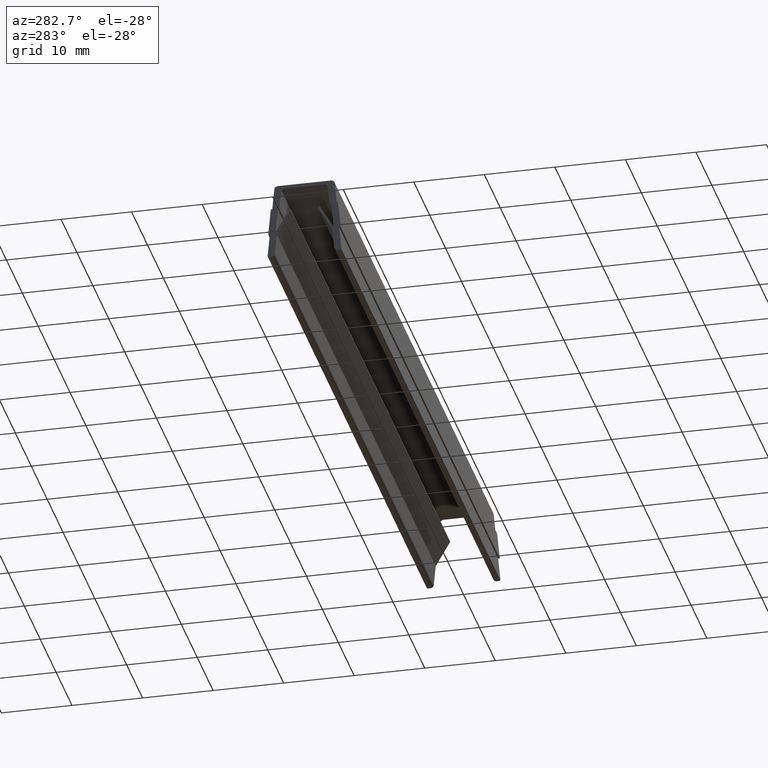
[diagram: clean part render]
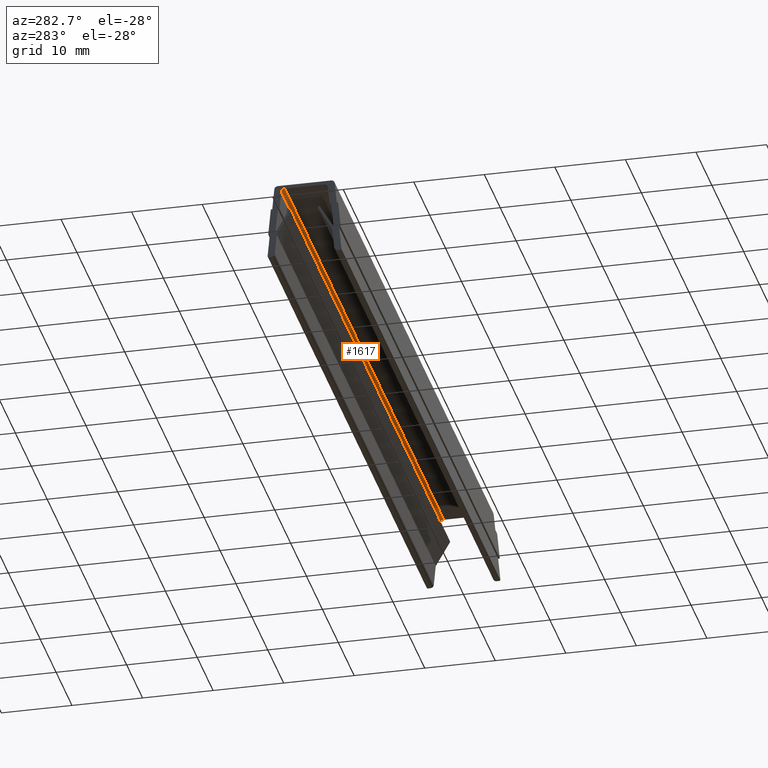
[diagram: same view with one face highlighted and labeled with its STEP entity id]
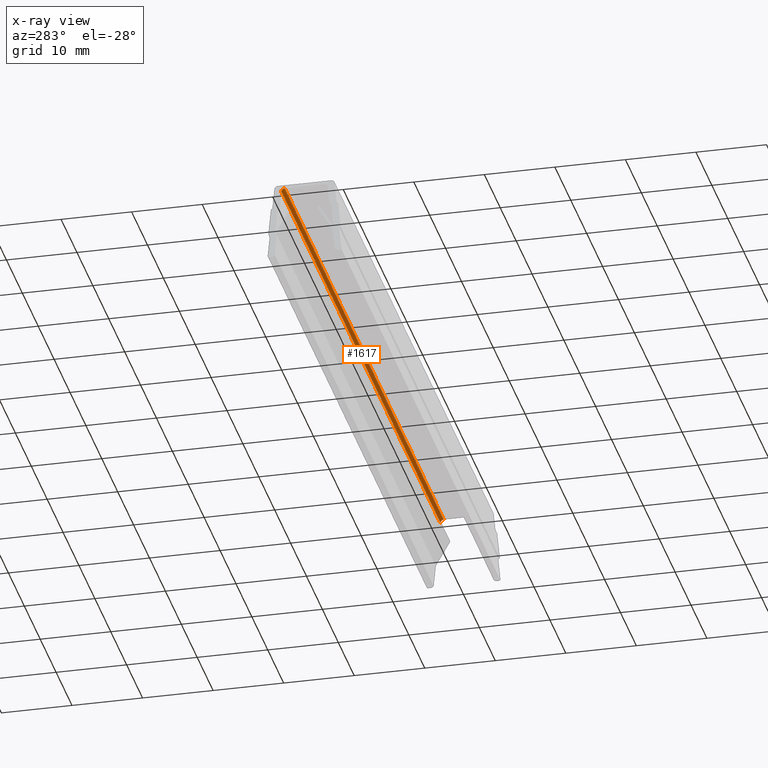
[diagram: x-ray of the same camera — body ghosted, the highlighted face saturated]
A machine part, auxiliary view. The second image highlights one B-rep face of the part: STEP entity #1617.
The next image is the same camera in x-ray: the body ghosted, the highlighted face saturated — about 0% of this face is hidden behind the body in this view.
In plain terms, the highlighted cylindrical surface (edge-blend (fillet) strip) has radius 0.5 mm, axis along (1, 0, 0).
Its self-contained STEP definition (entity closure, byte-faithful):
#376=CARTESIAN_POINT('',(100.0,2.795356592625502,0.0));
#377=VERTEX_POINT('',#376);
#384=CARTESIAN_POINT('',(100.0,3.293104328922482,-0.452595453686000));
#385=VERTEX_POINT('',#384);
#386=CARTESIAN_POINT('',(100.0,2.795356592625502,-0.500000000000000));
#387=DIRECTION('',(-1.0,0.0,0.0));
#388=DIRECTION('',(0.0,-1.0,6.123234E-017));
#389=AXIS2_PLACEMENT_3D('',#386,#387,#388);
#390=CIRCLE('',#389,0.500000000000001);
#391=EDGE_CURVE('',#377,#385,#390,.T.);
#714=CARTESIAN_POINT('',(0.0,3.293104328922482,-0.452595453686001));
#715=VERTEX_POINT('',#714);
#722=CARTESIAN_POINT('',(0.0,2.795356592625502,0.0));
#723=VERTEX_POINT('',#722);
#724=CARTESIAN_POINT('',(0.0,2.795356592625502,-0.500000000000000));
#725=DIRECTION('',(1.0,0.0,0.0));
#726=DIRECTION('',(0.0,-1.0,6.123234E-017));
#727=AXIS2_PLACEMENT_3D('',#724,#725,#726);
#728=CIRCLE('',#727,0.500000000000001);
#729=EDGE_CURVE('',#715,#723,#728,.T.);
#1095=CARTESIAN_POINT('',(100.0,3.293104328922482,-0.452595453686001));
#1096=DIRECTION('',(-1.0,0.0,0.0));
#1097=VECTOR('',#1096,100.0);
#1098=LINE('',#1095,#1097);
#1099=EDGE_CURVE('',#385,#715,#1098,.T.);
#1117=CARTESIAN_POINT('',(0.0,2.795356592625502,0.0));
#1118=DIRECTION('',(1.0,0.0,0.0));
#1119=VECTOR('',#1118,100.0);
#1120=LINE('',#1117,#1119);
#1121=EDGE_CURVE('',#723,#377,#1120,.T.);
#1606=CARTESIAN_POINT('',(-1.000000E-008,2.795356592625502,-0.500000000000000));
#1607=DIRECTION('',(1.0,0.0,0.0));
#1608=DIRECTION('',(0.0,1.0,-6.123234E-017));
#1609=AXIS2_PLACEMENT_3D('',#1606,#1607,#1608);
#1610=CYLINDRICAL_SURFACE('',#1609,0.500000000000001);
#1611=ORIENTED_EDGE('',*,*,#391,.F.);
#1612=ORIENTED_EDGE('',*,*,#1121,.F.);
#1613=ORIENTED_EDGE('',*,*,#729,.F.);
#1614=ORIENTED_EDGE('',*,*,#1099,.F.);
#1615=EDGE_LOOP('',(#1611,#1612,#1613,#1614));
#1616=FACE_OUTER_BOUND('',#1615,.T.);
#1617=ADVANCED_FACE('',(#1616),#1610,.F.);